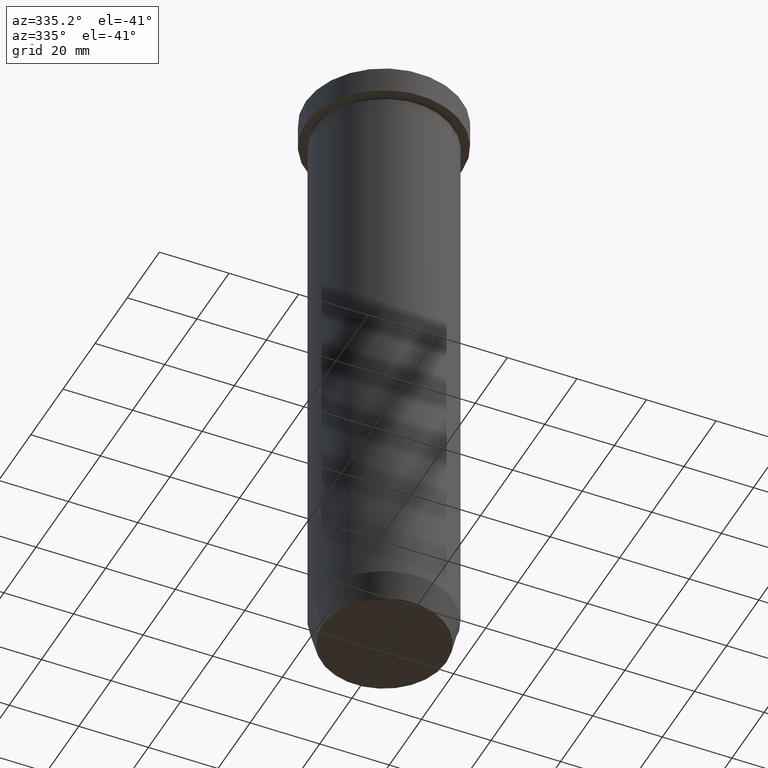
[diagram: clean part render]
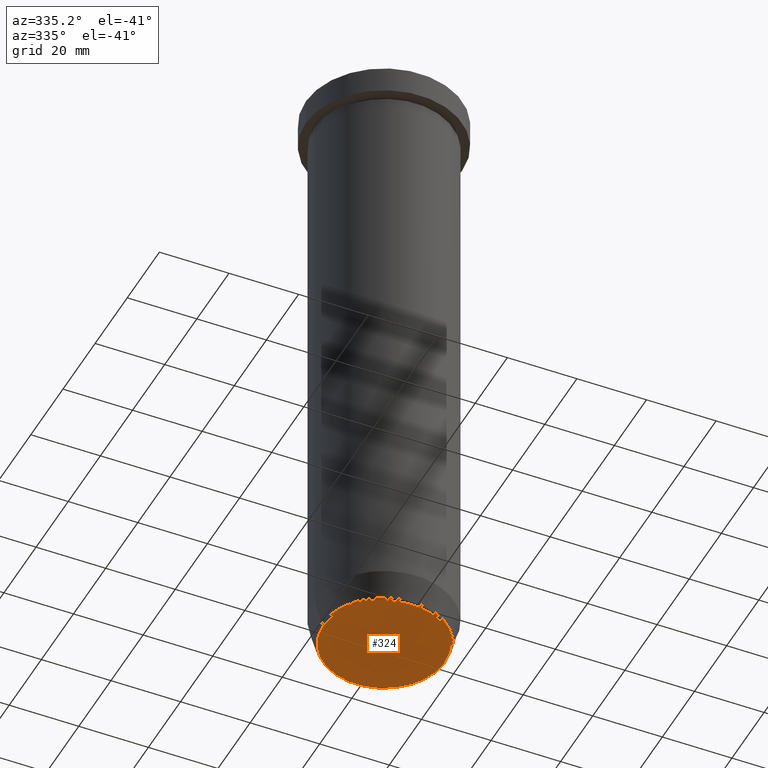
[diagram: same view with one face highlighted and labeled with its STEP entity id]
A machine part, auxiliary view. The second image highlights one B-rep face of the part: STEP entity #324.
In plain terms, the highlighted planar face has unit normal (0, -0, 1).
Its self-contained STEP definition (entity closure, byte-faithful):
#124 = EDGE_LOOP ( 'NONE', ( #134, #350 ) ) ;
#134 = ORIENTED_EDGE ( 'NONE', *, *, #407, .T. ) ;
#141 = DIRECTION ( 'NONE',  ( 1.000000000000000000, 0.000000000000000000, 0.000000000000000000 ) ) ;
#180 = DIRECTION ( 'NONE',  ( 1.000000000000000000, 0.000000000000000000, 0.000000000000000000 ) ) ;
#191 = CARTESIAN_POINT ( 'NONE',  ( -17.47274296656154391, 2.169366823916869292E-15, -180.0000000000000000 ) ) ;
#214 = AXIS2_PLACEMENT_3D ( 'NONE', #380, #377, #141 ) ;
#217 = EDGE_CURVE ( 'NONE', #318, #438, #510, .T. ) ;
#300 = DIRECTION ( 'NONE',  ( 0.000000000000000000, 0.000000000000000000, -1.000000000000000000 ) ) ;
#303 = AXIS2_PLACEMENT_3D ( 'NONE', #573, #300, #531 ) ;
#318 = VERTEX_POINT ( 'NONE', #191 ) ;
#324 = ADVANCED_FACE ( 'NONE', ( #560 ), #467, .F. ) ;
#350 = ORIENTED_EDGE ( 'NONE', *, *, #217, .T. ) ;
#377 = DIRECTION ( 'NONE',  ( 0.000000000000000000, -0.000000000000000000, 1.000000000000000000 ) ) ;
#380 = CARTESIAN_POINT ( 'NONE',  ( 0.000000000000000000, 1.592040838891559450E-14, -180.0000000000000000 ) ) ;
#391 = CARTESIAN_POINT ( 'NONE',  ( 17.47274296656154391, 0.000000000000000000, -180.0000000000000000 ) ) ;
#407 = EDGE_CURVE ( 'NONE', #438, #318, #598, .T. ) ;
#438 = VERTEX_POINT ( 'NONE', #391 ) ;
#467 = PLANE ( 'NONE',  #214 ) ;
#493 = DIRECTION ( 'NONE',  ( 0.000000000000000000, 0.000000000000000000, -1.000000000000000000 ) ) ;
#510 = CIRCLE ( 'NONE', #578, 17.47274296656154391 ) ;
#531 = DIRECTION ( 'NONE',  ( 1.000000000000000000, 0.000000000000000000, 0.000000000000000000 ) ) ;
#560 = FACE_OUTER_BOUND ( 'NONE', #124, .T. ) ;
#573 = CARTESIAN_POINT ( 'NONE',  ( 0.000000000000000000, 0.000000000000000000, -180.0000000000000000 ) ) ;
#578 = AXIS2_PLACEMENT_3D ( 'NONE', #585, #493, #180 ) ;
#585 = CARTESIAN_POINT ( 'NONE',  ( 0.000000000000000000, 0.000000000000000000, -180.0000000000000000 ) ) ;
#598 = CIRCLE ( 'NONE', #303, 17.47274296656154391 ) ;